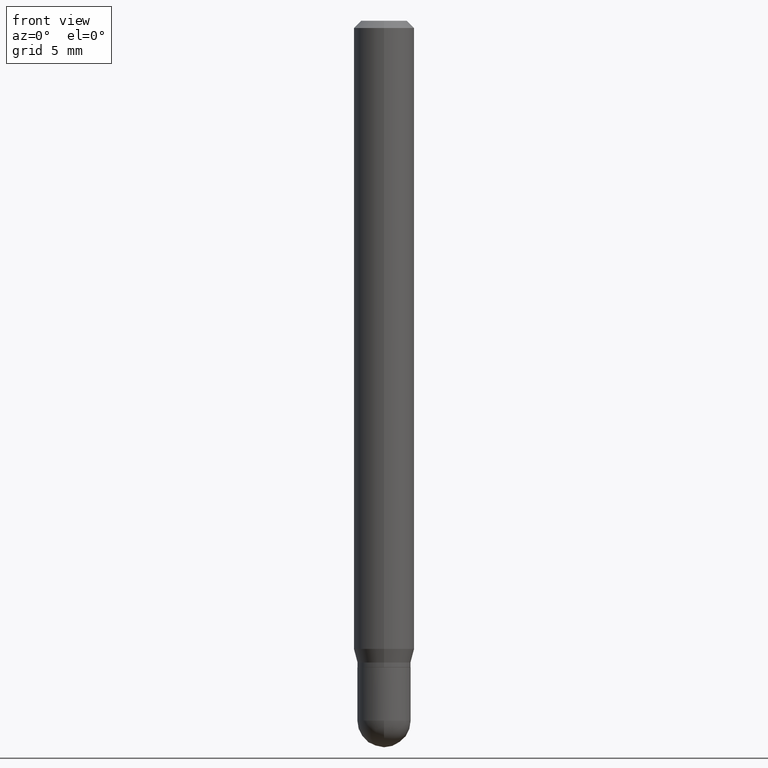
[diagram: clean part render]
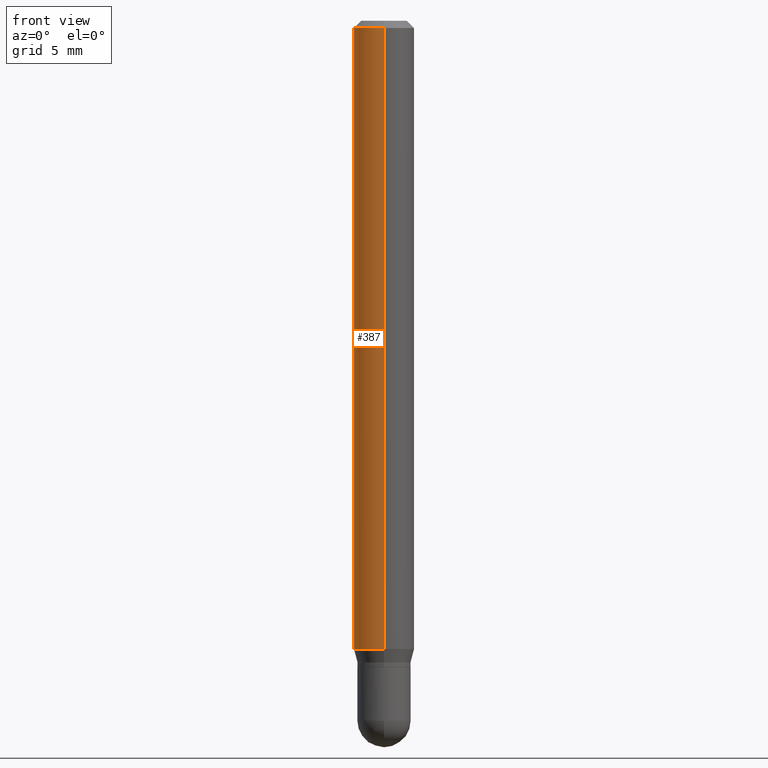
[diagram: same view with one face highlighted and labeled with its STEP entity id]
A machine part, front view. The second image highlights one B-rep face of the part: STEP entity #387.
In plain terms, the highlighted cylindrical surface (edge-blend (fillet) strip) has radius 1.5875 mm, axis along (-0, 0, 1).
Its self-contained STEP definition (entity closure, byte-faithful):
#7 = ORIENTED_EDGE ( 'NONE', *, *, #268, .T. ) ;
#22 = CYLINDRICAL_SURFACE ( 'NONE', #285, 0.06250000000000000000 ) ;
#46 = ORIENTED_EDGE ( 'NONE', *, *, #384, .T. ) ;
#52 = CARTESIAN_POINT ( 'NONE',  ( 4.440892098500943678E-16, 0.06249999999999548972, -1.297009618943233633 ) ) ;
#67 = AXIS2_PLACEMENT_3D ( 'NONE', #207, #95, #320 ) ;
#69 = DIRECTION ( 'NONE',  ( -6.982962677686265922E-15, -1.000000000000000000, 3.491621196352252256E-15 ) ) ;
#89 = LINE ( 'NONE', #476, #99 ) ;
#95 = DIRECTION ( 'NONE',  ( -2.445371144208507908E-29, 3.491621196352252256E-15, 1.000000000000000000 ) ) ;
#99 = VECTOR ( 'NONE', #125, 39.37007874015748143 ) ;
#101 = CARTESIAN_POINT ( 'NONE',  ( 4.440892098500625669E-16, 0.06250000000000000000, -2.182263247720157660E-16 ) ) ;
#103 = LINE ( 'NONE', #101, #424 ) ;
#104 = VERTEX_POINT ( 'NONE', #398 ) ;
#106 = ORIENTED_EDGE ( 'NONE', *, *, #161, .F. ) ;
#107 = CIRCLE ( 'NONE', #67, 0.06250000000000000000 ) ;
#123 = CIRCLE ( 'NONE', #500, 0.06250000000000000000 ) ;
#125 = DIRECTION ( 'NONE',  ( -2.445371144208507908E-29, 3.491621196352251862E-15, 1.000000000000000000 ) ) ;
#159 = DIRECTION ( 'NONE',  ( -2.445371144208507908E-29, 3.491621196352252256E-15, 1.000000000000000000 ) ) ;
#161 = EDGE_CURVE ( 'NONE', #104, #456, #123, .T. ) ;
#169 = EDGE_LOOP ( 'NONE', ( #495, #7, #46, #106 ) ) ;
#184 = CARTESIAN_POINT ( 'NONE',  ( 0.000000000000000000, 0.000000000000000000, 0.000000000000000000 ) ) ;
#193 = CARTESIAN_POINT ( 'NONE',  ( 3.668056716312763876E-31, -5.237431794528382255E-17, -0.01500000000000000812 ) ) ;
#207 = CARTESIAN_POINT ( 'NONE',  ( 3.171669895924655731E-29, -4.528666277374951115E-15, -1.297009618943233411 ) ) ;
#253 = DIRECTION ( 'NONE',  ( -2.445371144208507908E-29, 3.491621196352251862E-15, 1.000000000000000000 ) ) ;
#255 = CARTESIAN_POINT ( 'NONE',  ( -4.364351673553597698E-16, -0.06250000000000451028, -1.297009618943233189 ) ) ;
#268 = EDGE_CURVE ( 'NONE', #363, #442, #107, .T. ) ;
#279 = FACE_OUTER_BOUND ( 'NONE', #169, .T. ) ;
#285 = AXIS2_PLACEMENT_3D ( 'NONE', #184, #452, #69 ) ;
#290 = CARTESIAN_POINT ( 'NONE',  ( -4.364351673553912750E-16, -0.06250000000000005551, -0.01499999999999979128 ) ) ;
#320 = DIRECTION ( 'NONE',  ( -6.982962677686265922E-15, -1.000000000000000000, 4.370956789862821150E-15 ) ) ;
#363 = VERTEX_POINT ( 'NONE', #52 ) ;
#384 = EDGE_CURVE ( 'NONE', #442, #456, #89, .T. ) ;
#387 = ADVANCED_FACE ( 'NONE', ( #279 ), #22, .T. ) ;
#398 = CARTESIAN_POINT ( 'NONE',  ( 4.440892098500945650E-16, 0.06249999999999995143, -0.01500000000000022669 ) ) ;
#424 = VECTOR ( 'NONE', #253, 39.37007874015748143 ) ;
#430 = DIRECTION ( 'NONE',  ( -6.982962677686265922E-15, -1.000000000000000000, 3.483106191921935554E-15 ) ) ;
#442 = VERTEX_POINT ( 'NONE', #255 ) ;
#452 = DIRECTION ( 'NONE',  ( -2.445371144208507908E-29, 3.491621196352252256E-15, 1.000000000000000000 ) ) ;
#456 = VERTEX_POINT ( 'NONE', #290 ) ;
#476 = CARTESIAN_POINT ( 'NONE',  ( -4.364351673553916201E-16, -0.06250000000000000000, 2.182263247720157660E-16 ) ) ;
#480 = EDGE_CURVE ( 'NONE', #363, #104, #103, .T. ) ;
#495 = ORIENTED_EDGE ( 'NONE', *, *, #480, .F. ) ;
#500 = AXIS2_PLACEMENT_3D ( 'NONE', #193, #159, #430 ) ;